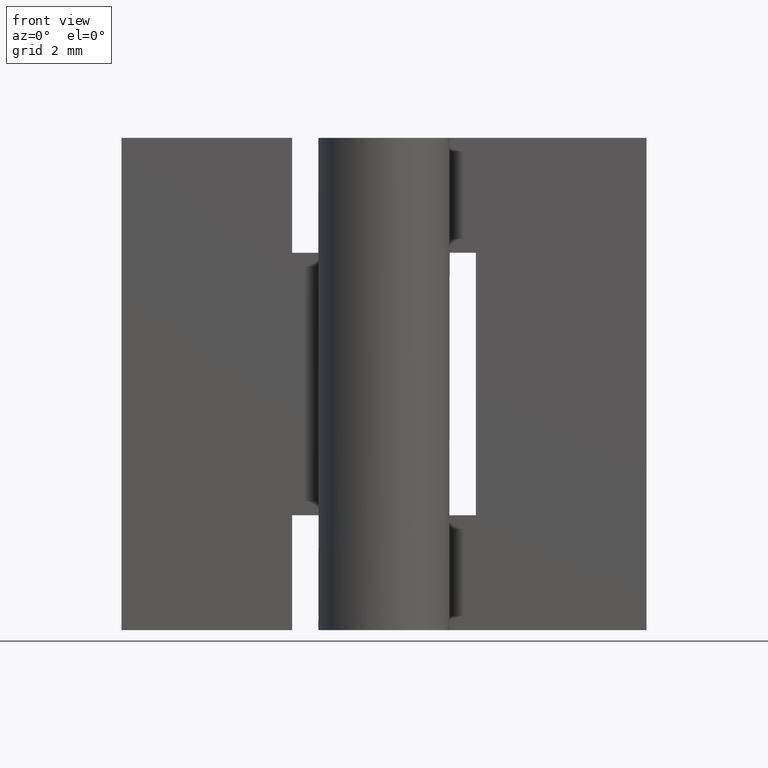
[diagram: clean part render]
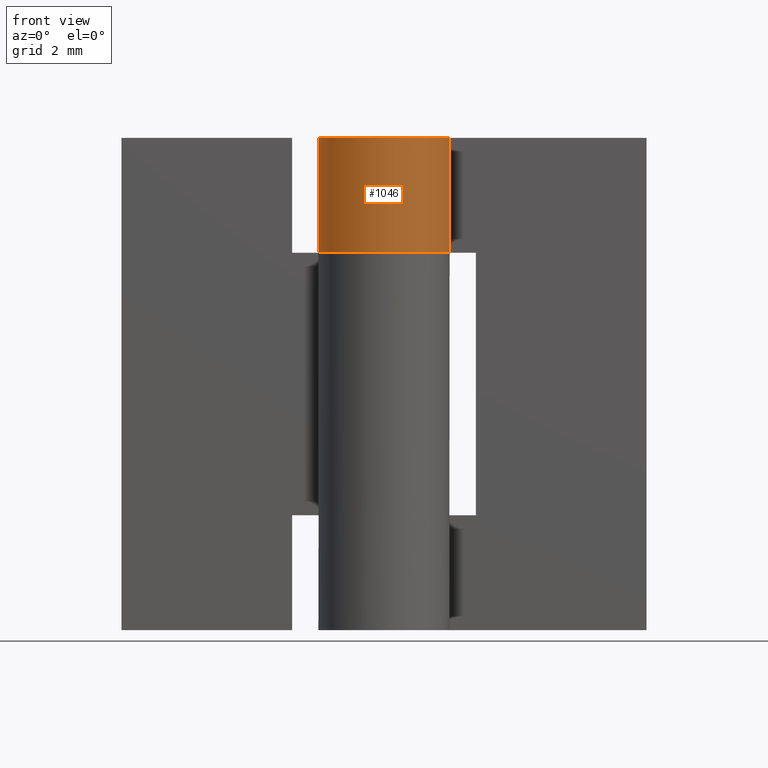
[diagram: same view with one face highlighted and labeled with its STEP entity id]
A machine part, front view. The second image highlights one B-rep face of the part: STEP entity #1046.
In plain terms, the highlighted face is a freeform B-spline surface patch.
Its self-contained STEP definition (entity closure, byte-faithful):
#532=CARTESIAN_POINT('',(1.759971590679805,0.950000000000000,11.500000000000000));
#533=VERTEX_POINT('',#532);
#534=CARTESIAN_POINT('',(0.0,2.0,11.500000000000000));
#535=VERTEX_POINT('',#534);
#536=CARTESIAN_POINT('',(1.759971590679804,0.950000000000000,11.500000000000000));
#537=CARTESIAN_POINT('',(2.483544518215584,-0.390492417103144,11.500000000000002));
#538=CARTESIAN_POINT('',(1.383518044628769,-1.444256840103792,11.500000000000000));
#539=CARTESIAN_POINT('',(0.283491571041955,-2.498021263104437,11.500000000000002));
#540=CARTESIAN_POINT('',(-1.024695076595959,-1.717556403731767,11.500000000000000));
#541=CARTESIAN_POINT('',(-2.332881724233873,-0.937091544359097,11.500000000000002));
#542=CARTESIAN_POINT('',(-1.928096575312494,0.531454227820451,11.500000000000000));
#543=CARTESIAN_POINT('',(-1.523311426391115,2.000000000000000,11.500000000000002));
#544=CARTESIAN_POINT('',(0.0,2.0,11.500000000000000));
#552=(BOUNDED_CURVE()B_SPLINE_CURVE(2,(#536,#537,#538,#539,#540,#541,#542,#543,#544),.UNSPECIFIED.,.F.,.U.)B_SPLINE_CURVE_WITH_KNOTS((3,2,2,2,3),(0.0,0.250000000000000,0.500000000000000,0.750000000000000,1.0),.UNSPECIFIED.)CURVE()GEOMETRIC_REPRESENTATION_ITEM()RATIONAL_B_SPLINE_CURVE((1.0,0.795527219493534,1.0,0.795527219493534,1.0,0.795527219493534,1.0,0.795527219493534,1.0))REPRESENTATION_ITEM(''));
#553=EDGE_CURVE('',#533,#535,#552,.T.);
#750=CARTESIAN_POINT('',(1.759971590679805,0.950000000000000,15.0));
#751=VERTEX_POINT('',#750);
#752=CARTESIAN_POINT('',(0.0,2.0,15.0));
#753=VERTEX_POINT('',#752);
#754=CARTESIAN_POINT('',(1.759971590679804,0.950000000000000,15.0));
#755=CARTESIAN_POINT('',(2.483544518215584,-0.390492417103144,15.000000000000004));
#756=CARTESIAN_POINT('',(1.383518044628769,-1.444256840103792,15.0));
#757=CARTESIAN_POINT('',(0.283491571041955,-2.498021263104437,15.000000000000004));
#758=CARTESIAN_POINT('',(-1.024695076595959,-1.717556403731767,15.0));
#759=CARTESIAN_POINT('',(-2.332881724233873,-0.937091544359097,15.000000000000004));
#760=CARTESIAN_POINT('',(-1.928096575312494,0.531454227820451,15.0));
#761=CARTESIAN_POINT('',(-1.523311426391115,2.000000000000000,15.000000000000004));
#762=CARTESIAN_POINT('',(0.0,2.0,15.0));
#770=(BOUNDED_CURVE()B_SPLINE_CURVE(2,(#754,#755,#756,#757,#758,#759,#760,#761,#762),.UNSPECIFIED.,.F.,.U.)B_SPLINE_CURVE_WITH_KNOTS((3,2,2,2,3),(0.0,0.250000000000000,0.500000000000000,0.750000000000000,1.0),.UNSPECIFIED.)CURVE()GEOMETRIC_REPRESENTATION_ITEM()RATIONAL_B_SPLINE_CURVE((1.0,0.795527219493534,1.0,0.795527219493534,1.0,0.795527219493534,1.0,0.795527219493534,1.0))REPRESENTATION_ITEM(''));
#771=EDGE_CURVE('',#751,#753,#770,.T.);
#835=CARTESIAN_POINT('',(1.759971590679805,0.950000000000000,15.0));
#836=CARTESIAN_POINT('',(1.759971590679805,0.950000000000000,11.500000000000000));
#837=QUASI_UNIFORM_CURVE('',1,(#835,#836),.UNSPECIFIED.,.F.,.U.);
#838=EDGE_CURVE('',#751,#533,#837,.T.);
#924=CARTESIAN_POINT('',(0.0,2.0,15.0));
#925=CARTESIAN_POINT('',(0.0,2.0,11.500000000000000));
#926=QUASI_UNIFORM_CURVE('',1,(#924,#925),.UNSPECIFIED.,.F.,.U.);
#927=EDGE_CURVE('',#753,#535,#926,.T.);
#1018=CARTESIAN_POINT('',(0.074705397571525,1.998604288891044,15.087500000000000));
#1019=CARTESIAN_POINT('',(0.074705397571525,1.998604288891044,11.410312500000000));
#1020=CARTESIAN_POINT('',(-2.378738422527869,2.090311034953130,15.087500000000002));
#1021=CARTESIAN_POINT('',(-2.378738422527869,2.090311034953130,11.410312500000000));
#1022=CARTESIAN_POINT('',(-1.972421111082867,-0.330990876845006,15.087500000000000));
#1023=CARTESIAN_POINT('',(-1.972421111082867,-0.330990876845006,11.410312500000000));
#1024=CARTESIAN_POINT('',(-1.566103799637865,-2.752292788643142,15.087500000000002));
#1025=CARTESIAN_POINT('',(-1.566103799637865,-2.752292788643142,11.410312500000000));
#1026=CARTESIAN_POINT('',(0.723011019827752,-1.864739945731745,15.087500000000000));
#1027=CARTESIAN_POINT('',(0.723011019827752,-1.864739945731745,11.410312500000000));
#1028=CARTESIAN_POINT('',(3.012125839293368,-0.977187102820347,15.087500000000002));
#1029=CARTESIAN_POINT('',(3.012125839293368,-0.977187102820347,11.410312500000000));
#1030=CARTESIAN_POINT('',(1.680010044685109,1.085157246557906,15.087500000000000));
#1031=CARTESIAN_POINT('',(1.680010044685109,1.085157246557906,11.410312500000000));
#1039=(BOUNDED_SURFACE()B_SPLINE_SURFACE(1,2,((#1018,#1020,#1022,#1024,#1026,#1028,#1030),(#1019,#1021,#1023,#1025,#1027,#1029,#1031)),.UNSPECIFIED.,.F.,.F.,.U.)B_SPLINE_SURFACE_WITH_KNOTS((2,2),(3,2,2,3),(0.0,3.677187500000002),(0.0,3.801531476131832,7.603062952263664,11.404594428395500),.UNSPECIFIED.)GEOMETRIC_REPRESENTATION_ITEM()RATIONAL_B_SPLINE_SURFACE(((1.0,0.631578351302498,1.0,0.631578351302498,1.0,0.631578351302498,1.0),(1.0,0.631578351302498,1.0,0.631578351302498,1.0,0.631578351302498,1.0)))REPRESENTATION_ITEM('')SURFACE());
#1040=ORIENTED_EDGE('',*,*,#553,.F.);
#1041=ORIENTED_EDGE('',*,*,#838,.F.);
#1042=ORIENTED_EDGE('',*,*,#771,.T.);
#1043=ORIENTED_EDGE('',*,*,#927,.T.);
#1044=EDGE_LOOP('',(#1040,#1041,#1042,#1043));
#1045=FACE_OUTER_BOUND('',#1044,.T.);
#1046=ADVANCED_FACE('',(#1045),#1039,.T.);